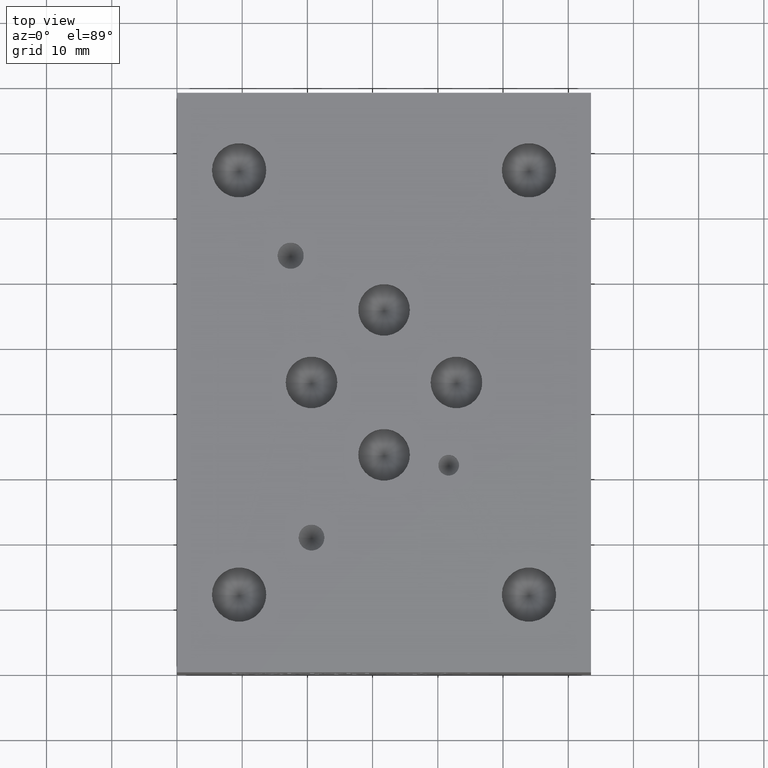
[diagram: clean part render]
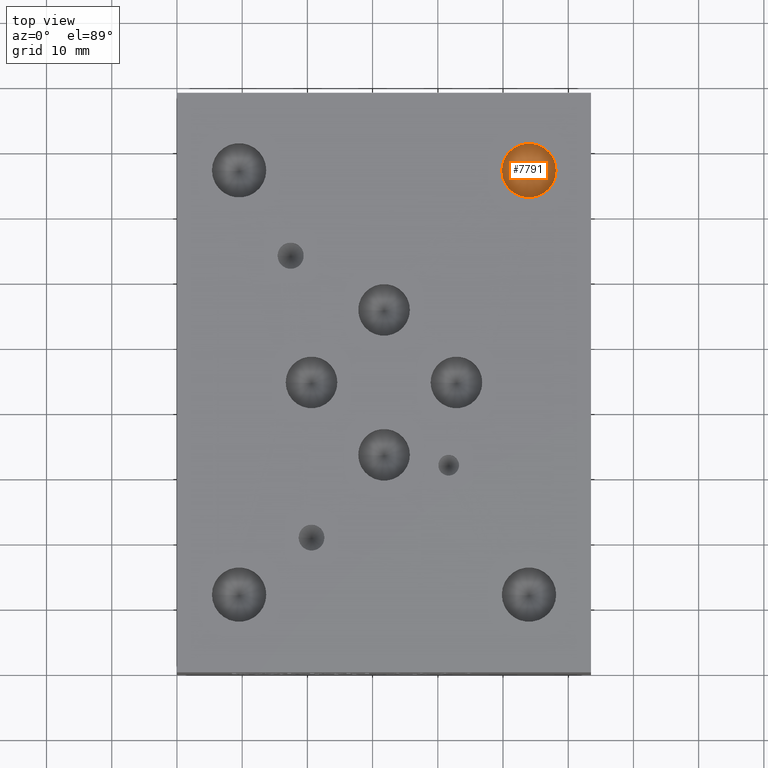
[diagram: same view with one face highlighted and labeled with its STEP entity id]
A machine part, top view. The second image highlights one B-rep face of the part: STEP entity #7791.
In plain terms, the highlighted conical surface has half-angle 60 deg.
Its self-contained STEP definition (entity closure, byte-faithful):
#130=CIRCLE('',#8220,4.1656);
#131=CIRCLE('',#8221,4.1656);
#192=CONICAL_SURFACE('',#8219,2.0828,1.0471975511966);
#799=FACE_OUTER_BOUND('',#1218,.T.);
#1218=EDGE_LOOP('',(#6640,#6641,#6642,#6643));
#2067=LINE('',#12855,#2886);
#2886=VECTOR('',#9858,2.0828);
#3598=VERTEX_POINT('',#12851);
#3599=VERTEX_POINT('',#12852);
#3600=VERTEX_POINT('',#12854);
#4645=EDGE_CURVE('',#3598,#3599,#130,.T.);
#4646=EDGE_CURVE('',#3599,#3600,#2067,.T.);
#4647=EDGE_CURVE('',#3599,#3598,#131,.T.);
#6640=ORIENTED_EDGE('',*,*,#4645,.T.);
#6641=ORIENTED_EDGE('',*,*,#4646,.T.);
#6642=ORIENTED_EDGE('',*,*,#4646,.F.);
#6643=ORIENTED_EDGE('',*,*,#4647,.T.);
#7791=ADVANCED_FACE('',(#799),#192,.F.);
#8219=AXIS2_PLACEMENT_3D('',#12850,#9854,#9855);
#8220=AXIS2_PLACEMENT_3D('',#12853,#9856,#9857);
#8221=AXIS2_PLACEMENT_3D('',#12856,#9859,#9860);
#9854=DIRECTION('center_axis',(0.,0.,1.));
#9855=DIRECTION('ref_axis',(1.,0.,0.));
#9856=DIRECTION('center_axis',(0.,0.,1.));
#9857=DIRECTION('ref_axis',(1.,0.,0.));
#9858=DIRECTION('',(0.866025403784438,1.06057523872491E-16,-0.5));
#9859=DIRECTION('center_axis',(0.,0.,1.));
#9860=DIRECTION('ref_axis',(1.,0.,0.));
#12850=CARTESIAN_POINT('Origin',(53.975,76.9874,21.7924848593318));
#12851=CARTESIAN_POINT('',(58.1406,76.9874,22.99499));
#12852=CARTESIAN_POINT('',(49.8094,76.9874,22.99499));
#12853=CARTESIAN_POINT('Origin',(53.975,76.9874,22.99499));
#12854=CARTESIAN_POINT('',(53.975,76.9874,20.5899797186637));
#12855=CARTESIAN_POINT('',(51.8922,76.9874,21.7924848593318));
#12856=CARTESIAN_POINT('Origin',(53.975,76.9874,22.99499));